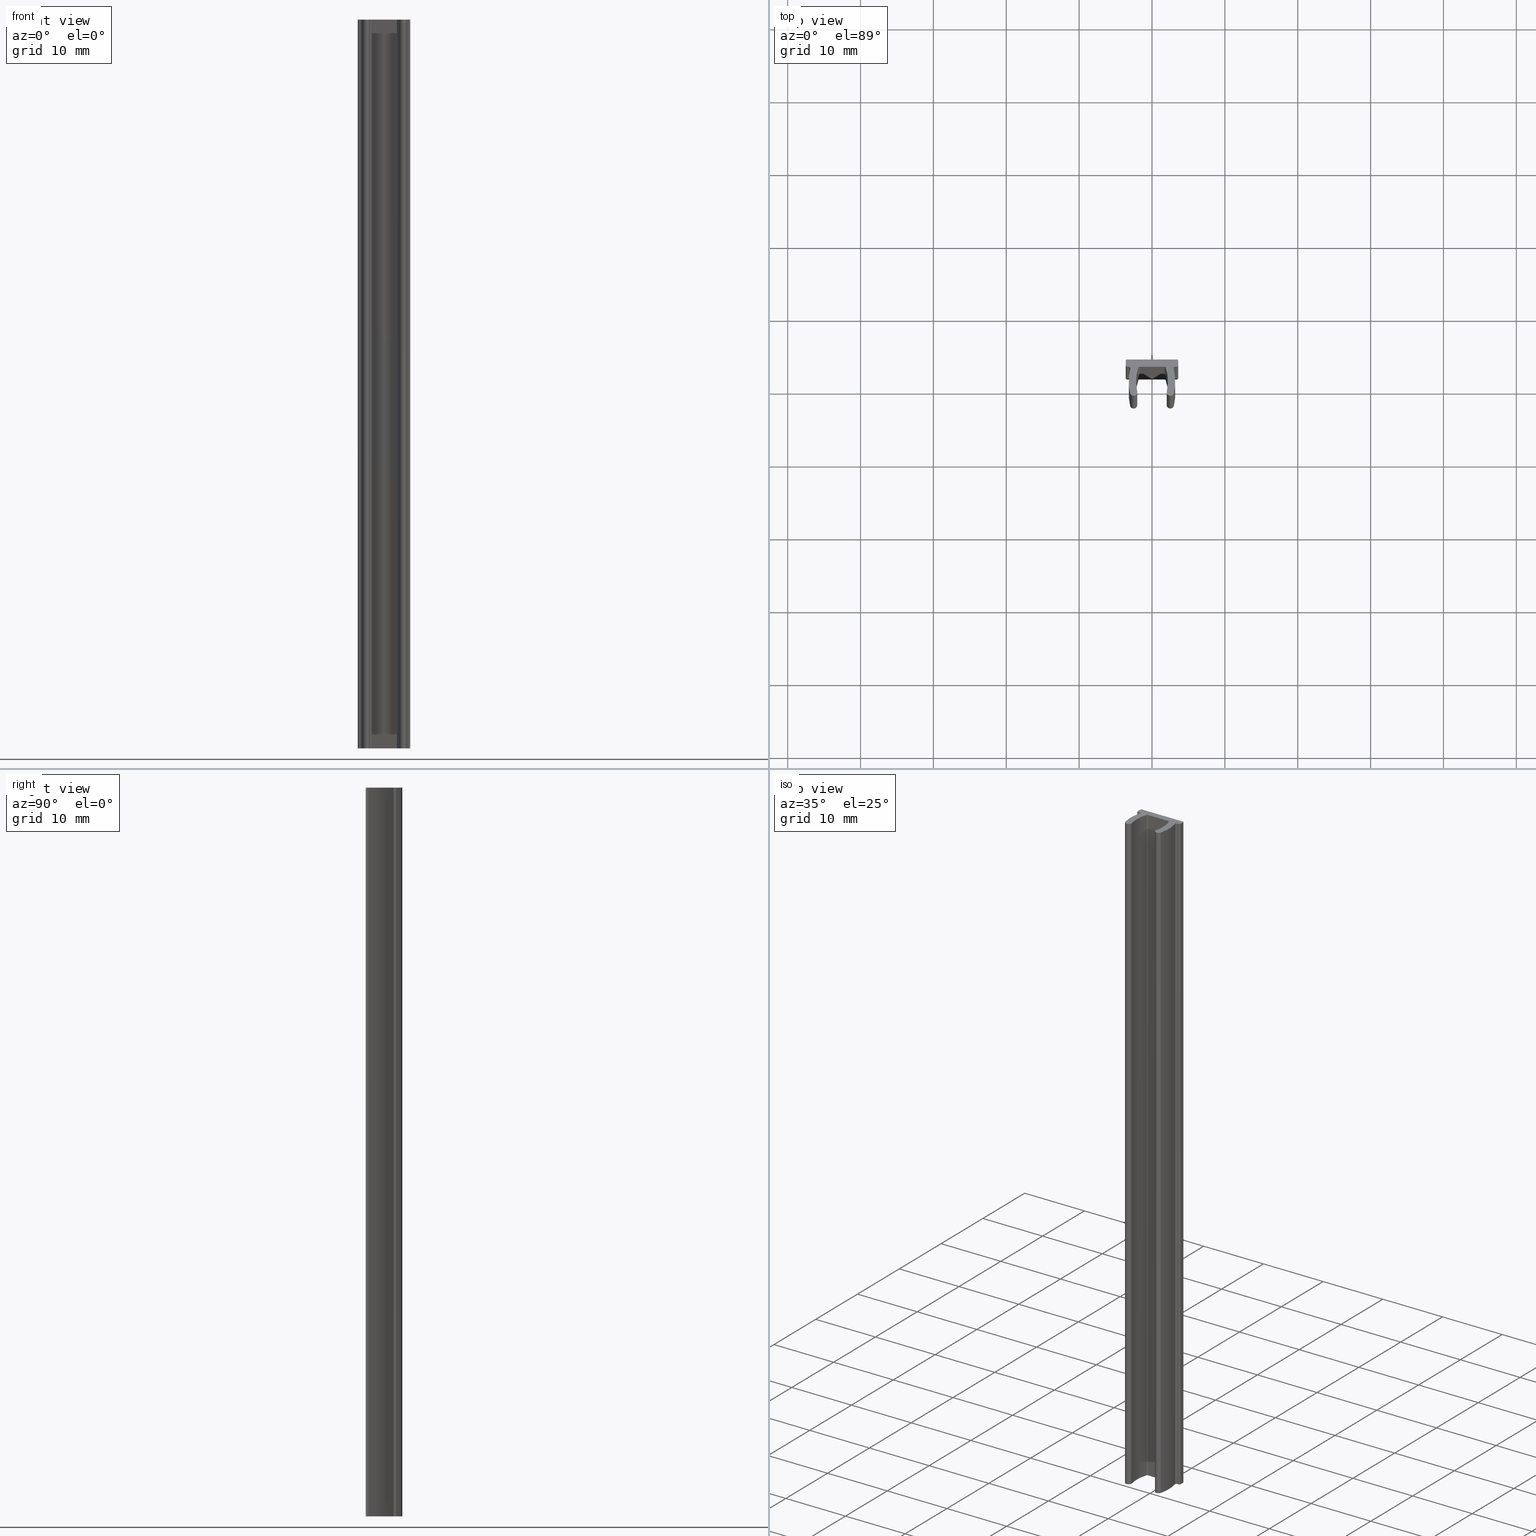
[diagram: canonical four-view strip — front | top / right | iso, engineering-drawing reading convention]
A machine part, canonical four-view strip (front | top / right | iso — engineering-drawing reading convention). The complete STEP part file that produces these views, byte-faithful:
ISO-10303-21;
HEADER;
/* Generated by software containing ST-Developer
 * from STEP Tools, Inc. (www.steptools.com) 
 */

FILE_DESCRIPTION(
/* description */ ('PROFILO COPRICAVA CAVA 6 NERO SERIE 45'),
/* implementation_level */ '2;1');

FILE_NAME(
/* name */ 
'Q:\\Catalogo\\2_Accessori Dierre\\Per Download Web e catalogo cartace
o\\CATALOGO GUARNIZIONI E PROFILI\\PAGINA 89\\DGUCA0000007.stp',
/* time_stamp */ '2019-10-22T14:35:34+02:00',
/* author */ ('fzagni'),
/* organization */ (''),
/* preprocessor_version */ 'ST-DEVELOPER v17.2',
/* originating_system */ 'Autodesk Inventor 2019',
/* authorisation */ '');

FILE_SCHEMA (('AUTOMOTIVE_DESIGN { 1 0 10303 214 3 1 1 }'));
ENDSEC;

DATA;
#10=MECHANICAL_DESIGN_GEOMETRIC_PRESENTATION_REPRESENTATION('',(#13),#745);
#11=SHAPE_REPRESENTATION_RELATIONSHIP('SRR','None',#752,#12);
#12=ADVANCED_BREP_SHAPE_REPRESENTATION('',(#14),#744);
#13=STYLED_ITEM('',(#761),#14);
#14=MANIFOLD_SOLID_BREP('Solido1',#415);
#15=PLANE('',#444);
#16=PLANE('',#454);
#17=PLANE('',#458);
#18=PLANE('',#459);
#19=PLANE('',#469);
#20=PLANE('',#474);
#21=PLANE('',#483);
#22=PLANE('',#484);
#23=FACE_OUTER_BOUND('',#45,.T.);
#24=FACE_OUTER_BOUND('',#46,.T.);
#25=FACE_OUTER_BOUND('',#47,.T.);
#26=FACE_OUTER_BOUND('',#48,.T.);
#27=FACE_OUTER_BOUND('',#49,.T.);
#28=FACE_OUTER_BOUND('',#50,.T.);
#29=FACE_OUTER_BOUND('',#51,.T.);
#30=FACE_OUTER_BOUND('',#52,.T.);
#31=FACE_OUTER_BOUND('',#53,.T.);
#32=FACE_OUTER_BOUND('',#54,.T.);
#33=FACE_OUTER_BOUND('',#55,.T.);
#34=FACE_OUTER_BOUND('',#56,.T.);
#35=FACE_OUTER_BOUND('',#57,.T.);
#36=FACE_OUTER_BOUND('',#58,.T.);
#37=FACE_OUTER_BOUND('',#59,.T.);
#38=FACE_OUTER_BOUND('',#60,.T.);
#39=FACE_OUTER_BOUND('',#61,.T.);
#40=FACE_OUTER_BOUND('',#62,.T.);
#41=FACE_OUTER_BOUND('',#63,.T.);
#42=FACE_OUTER_BOUND('',#64,.T.);
#43=FACE_OUTER_BOUND('',#65,.T.);
#44=FACE_OUTER_BOUND('',#66,.T.);
#45=EDGE_LOOP('',(#259,#260,#261,#262));
#46=EDGE_LOOP('',(#263,#264,#265,#266));
#47=EDGE_LOOP('',(#267,#268,#269,#270));
#48=EDGE_LOOP('',(#271,#272,#273,#274));
#49=EDGE_LOOP('',(#275,#276,#277,#278));
#50=EDGE_LOOP('',(#279,#280,#281,#282));
#51=EDGE_LOOP('',(#283,#284,#285,#286));
#52=EDGE_LOOP('',(#287,#288,#289,#290));
#53=EDGE_LOOP('',(#291,#292,#293,#294));
#54=EDGE_LOOP('',(#295,#296,#297,#298));
#55=EDGE_LOOP('',(#299,#300,#301,#302,#303,#304,#305,#306,#307,#308,#309,
#310,#311,#312,#313,#314,#315,#316,#317,#318));
#56=EDGE_LOOP('',(#319,#320,#321,#322));
#57=EDGE_LOOP('',(#323,#324,#325,#326));
#58=EDGE_LOOP('',(#327,#328,#329,#330));
#59=EDGE_LOOP('',(#331,#332,#333,#334));
#60=EDGE_LOOP('',(#335,#336,#337,#338));
#61=EDGE_LOOP('',(#339,#340,#341,#342));
#62=EDGE_LOOP('',(#343,#344,#345,#346));
#63=EDGE_LOOP('',(#347,#348,#349,#350));
#64=EDGE_LOOP('',(#351,#352,#353,#354));
#65=EDGE_LOOP('',(#355,#356,#357,#358));
#66=EDGE_LOOP('',(#359,#360,#361,#362,#363,#364,#365,#366,#367,#368,#369,
#370,#371,#372,#373,#374,#375,#376,#377,#378));
#67=LINE('',#625,#99);
#68=LINE('',#628,#100);
#69=LINE('',#633,#101);
#70=LINE('',#640,#102);
#71=LINE('',#643,#103);
#72=LINE('',#645,#104);
#73=LINE('',#646,#105);
#74=LINE('',#652,#106);
#75=LINE('',#655,#107);
#76=LINE('',#660,#108);
#77=LINE('',#667,#109);
#78=LINE('',#670,#110);
#79=LINE('',#673,#111);
#80=LINE('',#675,#112);
#81=LINE('',#676,#113);
#82=LINE('',#682,#114);
#83=LINE('',#685,#115);
#84=LINE('',#688,#116);
#85=LINE('',#690,#117);
#86=LINE('',#691,#118);
#87=LINE('',#693,#119);
#88=LINE('',#703,#120);
#89=LINE('',#707,#121);
#90=LINE('',#711,#122);
#91=LINE('',#715,#123);
#92=LINE('',#716,#124);
#93=LINE('',#720,#125);
#94=LINE('',#723,#126);
#95=LINE('',#726,#127);
#96=LINE('',#729,#128);
#97=LINE('',#735,#129);
#98=LINE('',#740,#130);
#99=VECTOR('',#491,10.);
#100=VECTOR('',#494,10.);
#101=VECTOR('',#499,10.);
#102=VECTOR('',#506,10.);
#103=VECTOR('',#509,10.);
#104=VECTOR('',#512,10.);
#105=VECTOR('',#513,10.);
#106=VECTOR('',#518,10.);
#107=VECTOR('',#521,10.);
#108=VECTOR('',#526,10.);
#109=VECTOR('',#533,10.);
#110=VECTOR('',#536,10.);
#111=VECTOR('',#539,10.);
#112=VECTOR('',#540,10.);
#113=VECTOR('',#541,10.);
#114=VECTOR('',#546,10.);
#115=VECTOR('',#549,10.);
#116=VECTOR('',#552,10.);
#117=VECTOR('',#553,10.);
#118=VECTOR('',#554,10.);
#119=VECTOR('',#557,10.);
#120=VECTOR('',#568,10.);
#121=VECTOR('',#571,10.);
#122=VECTOR('',#576,10.);
#123=VECTOR('',#581,10.);
#124=VECTOR('',#582,10.);
#125=VECTOR('',#587,10.);
#126=VECTOR('',#590,10.);
#127=VECTOR('',#595,10.);
#128=VECTOR('',#598,10.);
#129=VECTOR('',#607,10.);
#130=VECTOR('',#616,10.);
#131=CIRCLE('',#436,0.2);
#132=CIRCLE('',#437,0.2);
#133=CIRCLE('',#439,5.8);
#134=CIRCLE('',#440,5.8);
#135=CIRCLE('',#442,0.2);
#136=CIRCLE('',#443,0.2);
#137=CIRCLE('',#446,0.2);
#138=CIRCLE('',#447,0.2);
#139=CIRCLE('',#449,6.8);
#140=CIRCLE('',#450,6.8);
#141=CIRCLE('',#452,0.2);
#142=CIRCLE('',#453,0.2);
#143=CIRCLE('',#456,0.2);
#144=CIRCLE('',#457,0.2);
#145=CIRCLE('',#460,0.500000000000001);
#146=CIRCLE('',#461,5.8);
#147=CIRCLE('',#462,0.500000000000001);
#148=CIRCLE('',#463,6.8);
#149=CIRCLE('',#464,0.2);
#150=CIRCLE('',#465,0.2);
#151=CIRCLE('',#466,0.2);
#152=CIRCLE('',#468,0.2);
#153=CIRCLE('',#471,0.2);
#154=CIRCLE('',#473,0.2);
#155=CIRCLE('',#476,6.8);
#156=CIRCLE('',#478,0.500000000000001);
#157=CIRCLE('',#480,5.8);
#158=CIRCLE('',#482,0.500000000000001);
#159=VERTEX_POINT('',#621);
#160=VERTEX_POINT('',#622);
#161=VERTEX_POINT('',#624);
#162=VERTEX_POINT('',#626);
#163=VERTEX_POINT('',#630);
#164=VERTEX_POINT('',#632);
#165=VERTEX_POINT('',#636);
#166=VERTEX_POINT('',#637);
#167=VERTEX_POINT('',#639);
#168=VERTEX_POINT('',#641);
#169=VERTEX_POINT('',#648);
#170=VERTEX_POINT('',#649);
#171=VERTEX_POINT('',#651);
#172=VERTEX_POINT('',#653);
#173=VERTEX_POINT('',#657);
#174=VERTEX_POINT('',#659);
#175=VERTEX_POINT('',#663);
#176=VERTEX_POINT('',#664);
#177=VERTEX_POINT('',#666);
#178=VERTEX_POINT('',#668);
#179=VERTEX_POINT('',#672);
#180=VERTEX_POINT('',#674);
#181=VERTEX_POINT('',#678);
#182=VERTEX_POINT('',#679);
#183=VERTEX_POINT('',#681);
#184=VERTEX_POINT('',#683);
#185=VERTEX_POINT('',#687);
#186=VERTEX_POINT('',#689);
#187=VERTEX_POINT('',#694);
#188=VERTEX_POINT('',#697);
#189=VERTEX_POINT('',#700);
#190=VERTEX_POINT('',#702);
#191=VERTEX_POINT('',#704);
#192=VERTEX_POINT('',#706);
#193=VERTEX_POINT('',#710);
#194=VERTEX_POINT('',#714);
#195=VERTEX_POINT('',#718);
#196=VERTEX_POINT('',#722);
#197=VERTEX_POINT('',#728);
#198=VERTEX_POINT('',#734);
#199=EDGE_CURVE('',#159,#160,#131,.T.);
#200=EDGE_CURVE('',#160,#161,#67,.T.);
#201=EDGE_CURVE('',#161,#162,#132,.T.);
#202=EDGE_CURVE('',#162,#159,#68,.T.);
#203=EDGE_CURVE('',#163,#160,#133,.T.);
#204=EDGE_CURVE('',#163,#164,#69,.T.);
#205=EDGE_CURVE('',#161,#164,#134,.T.);
#206=EDGE_CURVE('',#165,#166,#135,.T.);
#207=EDGE_CURVE('',#166,#167,#70,.T.);
#208=EDGE_CURVE('',#167,#168,#136,.T.);
#209=EDGE_CURVE('',#168,#165,#71,.T.);
#210=EDGE_CURVE('',#167,#162,#72,.T.);
#211=EDGE_CURVE('',#159,#166,#73,.T.);
#212=EDGE_CURVE('',#169,#170,#137,.T.);
#213=EDGE_CURVE('',#170,#171,#74,.T.);
#214=EDGE_CURVE('',#171,#172,#138,.T.);
#215=EDGE_CURVE('',#172,#169,#75,.T.);
#216=EDGE_CURVE('',#173,#170,#139,.T.);
#217=EDGE_CURVE('',#173,#174,#76,.T.);
#218=EDGE_CURVE('',#171,#174,#140,.T.);
#219=EDGE_CURVE('',#175,#176,#141,.T.);
#220=EDGE_CURVE('',#176,#177,#77,.T.);
#221=EDGE_CURVE('',#177,#178,#142,.T.);
#222=EDGE_CURVE('',#178,#175,#78,.T.);
#223=EDGE_CURVE('',#179,#176,#79,.T.);
#224=EDGE_CURVE('',#180,#179,#80,.T.);
#225=EDGE_CURVE('',#177,#180,#81,.T.);
#226=EDGE_CURVE('',#181,#182,#143,.T.);
#227=EDGE_CURVE('',#182,#183,#82,.T.);
#228=EDGE_CURVE('',#183,#184,#144,.T.);
#229=EDGE_CURVE('',#184,#181,#83,.T.);
#230=EDGE_CURVE('',#185,#182,#84,.T.);
#231=EDGE_CURVE('',#186,#185,#85,.T.);
#232=EDGE_CURVE('',#183,#186,#86,.T.);
#233=EDGE_CURVE('',#181,#172,#87,.T.);
#234=EDGE_CURVE('',#174,#187,#145,.T.);
#235=EDGE_CURVE('',#187,#168,#146,.T.);
#236=EDGE_CURVE('',#164,#188,#147,.T.);
#237=EDGE_CURVE('',#188,#178,#148,.T.);
#238=EDGE_CURVE('',#189,#180,#149,.T.);
#239=EDGE_CURVE('',#189,#190,#88,.T.);
#240=EDGE_CURVE('',#191,#190,#150,.T.);
#241=EDGE_CURVE('',#191,#192,#89,.T.);
#242=EDGE_CURVE('',#185,#192,#151,.T.);
#243=EDGE_CURVE('',#192,#193,#90,.T.);
#244=EDGE_CURVE('',#193,#186,#152,.T.);
#245=EDGE_CURVE('',#194,#191,#91,.T.);
#246=EDGE_CURVE('',#193,#194,#92,.T.);
#247=EDGE_CURVE('',#179,#195,#153,.T.);
#248=EDGE_CURVE('',#195,#189,#93,.T.);
#249=EDGE_CURVE('',#190,#196,#94,.T.);
#250=EDGE_CURVE('',#196,#194,#154,.T.);
#251=EDGE_CURVE('',#196,#195,#95,.T.);
#252=EDGE_CURVE('',#197,#188,#96,.T.);
#253=EDGE_CURVE('',#175,#197,#155,.T.);
#254=EDGE_CURVE('',#197,#163,#156,.T.);
#255=EDGE_CURVE('',#198,#187,#97,.T.);
#256=EDGE_CURVE('',#165,#198,#157,.T.);
#257=EDGE_CURVE('',#198,#173,#158,.T.);
#258=EDGE_CURVE('',#169,#184,#98,.T.);
#259=ORIENTED_EDGE('',*,*,#199,.T.);
#260=ORIENTED_EDGE('',*,*,#200,.T.);
#261=ORIENTED_EDGE('',*,*,#201,.T.);
#262=ORIENTED_EDGE('',*,*,#202,.T.);
#263=ORIENTED_EDGE('',*,*,#200,.F.);
#264=ORIENTED_EDGE('',*,*,#203,.F.);
#265=ORIENTED_EDGE('',*,*,#204,.T.);
#266=ORIENTED_EDGE('',*,*,#205,.F.);
#267=ORIENTED_EDGE('',*,*,#206,.T.);
#268=ORIENTED_EDGE('',*,*,#207,.T.);
#269=ORIENTED_EDGE('',*,*,#208,.T.);
#270=ORIENTED_EDGE('',*,*,#209,.T.);
#271=ORIENTED_EDGE('',*,*,#202,.F.);
#272=ORIENTED_EDGE('',*,*,#210,.F.);
#273=ORIENTED_EDGE('',*,*,#207,.F.);
#274=ORIENTED_EDGE('',*,*,#211,.F.);
#275=ORIENTED_EDGE('',*,*,#212,.T.);
#276=ORIENTED_EDGE('',*,*,#213,.T.);
#277=ORIENTED_EDGE('',*,*,#214,.T.);
#278=ORIENTED_EDGE('',*,*,#215,.T.);
#279=ORIENTED_EDGE('',*,*,#213,.F.);
#280=ORIENTED_EDGE('',*,*,#216,.F.);
#281=ORIENTED_EDGE('',*,*,#217,.T.);
#282=ORIENTED_EDGE('',*,*,#218,.F.);
#283=ORIENTED_EDGE('',*,*,#219,.T.);
#284=ORIENTED_EDGE('',*,*,#220,.T.);
#285=ORIENTED_EDGE('',*,*,#221,.T.);
#286=ORIENTED_EDGE('',*,*,#222,.T.);
#287=ORIENTED_EDGE('',*,*,#220,.F.);
#288=ORIENTED_EDGE('',*,*,#223,.F.);
#289=ORIENTED_EDGE('',*,*,#224,.F.);
#290=ORIENTED_EDGE('',*,*,#225,.F.);
#291=ORIENTED_EDGE('',*,*,#226,.T.);
#292=ORIENTED_EDGE('',*,*,#227,.T.);
#293=ORIENTED_EDGE('',*,*,#228,.T.);
#294=ORIENTED_EDGE('',*,*,#229,.T.);
#295=ORIENTED_EDGE('',*,*,#227,.F.);
#296=ORIENTED_EDGE('',*,*,#230,.F.);
#297=ORIENTED_EDGE('',*,*,#231,.F.);
#298=ORIENTED_EDGE('',*,*,#232,.F.);
#299=ORIENTED_EDGE('',*,*,#226,.F.);
#300=ORIENTED_EDGE('',*,*,#233,.T.);
#301=ORIENTED_EDGE('',*,*,#214,.F.);
#302=ORIENTED_EDGE('',*,*,#218,.T.);
#303=ORIENTED_EDGE('',*,*,#234,.T.);
#304=ORIENTED_EDGE('',*,*,#235,.T.);
#305=ORIENTED_EDGE('',*,*,#208,.F.);
#306=ORIENTED_EDGE('',*,*,#210,.T.);
#307=ORIENTED_EDGE('',*,*,#201,.F.);
#308=ORIENTED_EDGE('',*,*,#205,.T.);
#309=ORIENTED_EDGE('',*,*,#236,.T.);
#310=ORIENTED_EDGE('',*,*,#237,.T.);
#311=ORIENTED_EDGE('',*,*,#221,.F.);
#312=ORIENTED_EDGE('',*,*,#225,.T.);
#313=ORIENTED_EDGE('',*,*,#238,.F.);
#314=ORIENTED_EDGE('',*,*,#239,.T.);
#315=ORIENTED_EDGE('',*,*,#240,.F.);
#316=ORIENTED_EDGE('',*,*,#241,.T.);
#317=ORIENTED_EDGE('',*,*,#242,.F.);
#318=ORIENTED_EDGE('',*,*,#230,.T.);
#319=ORIENTED_EDGE('',*,*,#242,.T.);
#320=ORIENTED_EDGE('',*,*,#243,.T.);
#321=ORIENTED_EDGE('',*,*,#244,.T.);
#322=ORIENTED_EDGE('',*,*,#231,.T.);
#323=ORIENTED_EDGE('',*,*,#243,.F.);
#324=ORIENTED_EDGE('',*,*,#241,.F.);
#325=ORIENTED_EDGE('',*,*,#245,.F.);
#326=ORIENTED_EDGE('',*,*,#246,.F.);
#327=ORIENTED_EDGE('',*,*,#238,.T.);
#328=ORIENTED_EDGE('',*,*,#224,.T.);
#329=ORIENTED_EDGE('',*,*,#247,.T.);
#330=ORIENTED_EDGE('',*,*,#248,.T.);
#331=ORIENTED_EDGE('',*,*,#240,.T.);
#332=ORIENTED_EDGE('',*,*,#249,.T.);
#333=ORIENTED_EDGE('',*,*,#250,.T.);
#334=ORIENTED_EDGE('',*,*,#245,.T.);
#335=ORIENTED_EDGE('',*,*,#248,.F.);
#336=ORIENTED_EDGE('',*,*,#251,.F.);
#337=ORIENTED_EDGE('',*,*,#249,.F.);
#338=ORIENTED_EDGE('',*,*,#239,.F.);
#339=ORIENTED_EDGE('',*,*,#222,.F.);
#340=ORIENTED_EDGE('',*,*,#237,.F.);
#341=ORIENTED_EDGE('',*,*,#252,.F.);
#342=ORIENTED_EDGE('',*,*,#253,.F.);
#343=ORIENTED_EDGE('',*,*,#254,.F.);
#344=ORIENTED_EDGE('',*,*,#252,.T.);
#345=ORIENTED_EDGE('',*,*,#236,.F.);
#346=ORIENTED_EDGE('',*,*,#204,.F.);
#347=ORIENTED_EDGE('',*,*,#209,.F.);
#348=ORIENTED_EDGE('',*,*,#235,.F.);
#349=ORIENTED_EDGE('',*,*,#255,.F.);
#350=ORIENTED_EDGE('',*,*,#256,.F.);
#351=ORIENTED_EDGE('',*,*,#257,.F.);
#352=ORIENTED_EDGE('',*,*,#255,.T.);
#353=ORIENTED_EDGE('',*,*,#234,.F.);
#354=ORIENTED_EDGE('',*,*,#217,.F.);
#355=ORIENTED_EDGE('',*,*,#215,.F.);
#356=ORIENTED_EDGE('',*,*,#233,.F.);
#357=ORIENTED_EDGE('',*,*,#229,.F.);
#358=ORIENTED_EDGE('',*,*,#258,.F.);
#359=ORIENTED_EDGE('',*,*,#228,.F.);
#360=ORIENTED_EDGE('',*,*,#232,.T.);
#361=ORIENTED_EDGE('',*,*,#244,.F.);
#362=ORIENTED_EDGE('',*,*,#246,.T.);
#363=ORIENTED_EDGE('',*,*,#250,.F.);
#364=ORIENTED_EDGE('',*,*,#251,.T.);
#365=ORIENTED_EDGE('',*,*,#247,.F.);
#366=ORIENTED_EDGE('',*,*,#223,.T.);
#367=ORIENTED_EDGE('',*,*,#219,.F.);
#368=ORIENTED_EDGE('',*,*,#253,.T.);
#369=ORIENTED_EDGE('',*,*,#254,.T.);
#370=ORIENTED_EDGE('',*,*,#203,.T.);
#371=ORIENTED_EDGE('',*,*,#199,.F.);
#372=ORIENTED_EDGE('',*,*,#211,.T.);
#373=ORIENTED_EDGE('',*,*,#206,.F.);
#374=ORIENTED_EDGE('',*,*,#256,.T.);
#375=ORIENTED_EDGE('',*,*,#257,.T.);
#376=ORIENTED_EDGE('',*,*,#216,.T.);
#377=ORIENTED_EDGE('',*,*,#212,.F.);
#378=ORIENTED_EDGE('',*,*,#258,.T.);
#379=CYLINDRICAL_SURFACE('',#435,0.2);
#380=CYLINDRICAL_SURFACE('',#438,5.8);
#381=CYLINDRICAL_SURFACE('',#441,0.2);
#382=CYLINDRICAL_SURFACE('',#445,0.2);
#383=CYLINDRICAL_SURFACE('',#448,6.8);
#384=CYLINDRICAL_SURFACE('',#451,0.2);
#385=CYLINDRICAL_SURFACE('',#455,0.2);
#386=CYLINDRICAL_SURFACE('',#467,0.2);
#387=CYLINDRICAL_SURFACE('',#470,0.2);
#388=CYLINDRICAL_SURFACE('',#472,0.2);
#389=CYLINDRICAL_SURFACE('',#475,6.8);
#390=CYLINDRICAL_SURFACE('',#477,0.500000000000001);
#391=CYLINDRICAL_SURFACE('',#479,5.8);
#392=CYLINDRICAL_SURFACE('',#481,0.500000000000001);
#393=ADVANCED_FACE('',(#23),#379,.F.);
#394=ADVANCED_FACE('',(#24),#380,.F.);
#395=ADVANCED_FACE('',(#25),#381,.F.);
#396=ADVANCED_FACE('',(#26),#15,.T.);
#397=ADVANCED_FACE('',(#27),#382,.F.);
#398=ADVANCED_FACE('',(#28),#383,.T.);
#399=ADVANCED_FACE('',(#29),#384,.F.);
#400=ADVANCED_FACE('',(#30),#16,.T.);
#401=ADVANCED_FACE('',(#31),#385,.T.);
#402=ADVANCED_FACE('',(#32),#17,.T.);
#403=ADVANCED_FACE('',(#33),#18,.T.);
#404=ADVANCED_FACE('',(#34),#386,.T.);
#405=ADVANCED_FACE('',(#35),#19,.T.);
#406=ADVANCED_FACE('',(#36),#387,.T.);
#407=ADVANCED_FACE('',(#37),#388,.T.);
#408=ADVANCED_FACE('',(#38),#20,.T.);
#409=ADVANCED_FACE('',(#39),#389,.T.);
#410=ADVANCED_FACE('',(#40),#390,.T.);
#411=ADVANCED_FACE('',(#41),#391,.F.);
#412=ADVANCED_FACE('',(#42),#392,.T.);
#413=ADVANCED_FACE('',(#43),#21,.T.);
#414=ADVANCED_FACE('',(#44),#22,.F.);
#415=CLOSED_SHELL('',(#393,#394,#395,#396,#397,#398,#399,#400,#401,#402,
#403,#404,#405,#406,#407,#408,#409,#410,#411,#412,#413,#414));
#416=DERIVED_UNIT_ELEMENT(#418,1.);
#417=DERIVED_UNIT_ELEMENT(#747,3.);
#418=(
MASS_UNIT()
NAMED_UNIT(*)
SI_UNIT($,.GRAM.)
);
#419=DERIVED_UNIT((#416,#417));
#420=MEASURE_REPRESENTATION_ITEM('density measure',
POSITIVE_RATIO_MEASURE(0.5),#419);
#421=PROPERTY_DEFINITION_REPRESENTATION(#426,#423);
#422=PROPERTY_DEFINITION_REPRESENTATION(#427,#424);
#423=REPRESENTATION('material name',(#425),#744);
#424=REPRESENTATION('density',(#420),#744);
#425=DESCRIPTIVE_REPRESENTATION_ITEM('PVC Nero','PVC Nero');
#426=PROPERTY_DEFINITION('material property','material name',#754);
#427=PROPERTY_DEFINITION('material property','density of part',#754);
#428=DATE_TIME_ROLE('creation_date');
#429=APPLIED_DATE_AND_TIME_ASSIGNMENT(#430,#428,(#754));
#430=DATE_AND_TIME(#431,#432);
#431=CALENDAR_DATE(2019,22,10);
#432=LOCAL_TIME(12,16,3.,#433);
#433=COORDINATED_UNIVERSAL_TIME_OFFSET(0,0,.BEHIND.);
#434=AXIS2_PLACEMENT_3D('placement',#619,#485,#486);
#435=AXIS2_PLACEMENT_3D('',#620,#487,#488);
#436=AXIS2_PLACEMENT_3D('',#623,#489,#490);
#437=AXIS2_PLACEMENT_3D('',#627,#492,#493);
#438=AXIS2_PLACEMENT_3D('',#629,#495,#496);
#439=AXIS2_PLACEMENT_3D('',#631,#497,#498);
#440=AXIS2_PLACEMENT_3D('',#634,#500,#501);
#441=AXIS2_PLACEMENT_3D('',#635,#502,#503);
#442=AXIS2_PLACEMENT_3D('',#638,#504,#505);
#443=AXIS2_PLACEMENT_3D('',#642,#507,#508);
#444=AXIS2_PLACEMENT_3D('',#644,#510,#511);
#445=AXIS2_PLACEMENT_3D('',#647,#514,#515);
#446=AXIS2_PLACEMENT_3D('',#650,#516,#517);
#447=AXIS2_PLACEMENT_3D('',#654,#519,#520);
#448=AXIS2_PLACEMENT_3D('',#656,#522,#523);
#449=AXIS2_PLACEMENT_3D('',#658,#524,#525);
#450=AXIS2_PLACEMENT_3D('',#661,#527,#528);
#451=AXIS2_PLACEMENT_3D('',#662,#529,#530);
#452=AXIS2_PLACEMENT_3D('',#665,#531,#532);
#453=AXIS2_PLACEMENT_3D('',#669,#534,#535);
#454=AXIS2_PLACEMENT_3D('',#671,#537,#538);
#455=AXIS2_PLACEMENT_3D('',#677,#542,#543);
#456=AXIS2_PLACEMENT_3D('',#680,#544,#545);
#457=AXIS2_PLACEMENT_3D('',#684,#547,#548);
#458=AXIS2_PLACEMENT_3D('',#686,#550,#551);
#459=AXIS2_PLACEMENT_3D('',#692,#555,#556);
#460=AXIS2_PLACEMENT_3D('',#695,#558,#559);
#461=AXIS2_PLACEMENT_3D('',#696,#560,#561);
#462=AXIS2_PLACEMENT_3D('',#698,#562,#563);
#463=AXIS2_PLACEMENT_3D('',#699,#564,#565);
#464=AXIS2_PLACEMENT_3D('',#701,#566,#567);
#465=AXIS2_PLACEMENT_3D('',#705,#569,#570);
#466=AXIS2_PLACEMENT_3D('',#708,#572,#573);
#467=AXIS2_PLACEMENT_3D('',#709,#574,#575);
#468=AXIS2_PLACEMENT_3D('',#712,#577,#578);
#469=AXIS2_PLACEMENT_3D('',#713,#579,#580);
#470=AXIS2_PLACEMENT_3D('',#717,#583,#584);
#471=AXIS2_PLACEMENT_3D('',#719,#585,#586);
#472=AXIS2_PLACEMENT_3D('',#721,#588,#589);
#473=AXIS2_PLACEMENT_3D('',#724,#591,#592);
#474=AXIS2_PLACEMENT_3D('',#725,#593,#594);
#475=AXIS2_PLACEMENT_3D('',#727,#596,#597);
#476=AXIS2_PLACEMENT_3D('',#730,#599,#600);
#477=AXIS2_PLACEMENT_3D('',#731,#601,#602);
#478=AXIS2_PLACEMENT_3D('',#732,#603,#604);
#479=AXIS2_PLACEMENT_3D('',#733,#605,#606);
#480=AXIS2_PLACEMENT_3D('',#736,#608,#609);
#481=AXIS2_PLACEMENT_3D('',#737,#610,#611);
#482=AXIS2_PLACEMENT_3D('',#738,#612,#613);
#483=AXIS2_PLACEMENT_3D('',#739,#614,#615);
#484=AXIS2_PLACEMENT_3D('',#741,#617,#618);
#485=DIRECTION('axis',(0.,0.,1.));
#486=DIRECTION('refdir',(1.,0.,0.));
#487=DIRECTION('center_axis',(0.,0.,1.));
#488=DIRECTION('ref_axis',(0.582482372510715,0.812843334052933,0.));
#489=DIRECTION('center_axis',(0.,0.,-1.));
#490=DIRECTION('ref_axis',(0.582482372510715,0.812843334052933,0.));
#491=DIRECTION('',(0.,0.,1.));
#492=DIRECTION('center_axis',(0.,0.,1.));
#493=DIRECTION('ref_axis',(0.582482372510715,0.812843334052933,0.));
#494=DIRECTION('',(0.,0.,-1.));
#495=DIRECTION('center_axis',(0.,0.,1.));
#496=DIRECTION('ref_axis',(0.971241812112912,-0.238095238095235,0.));
#497=DIRECTION('center_axis',(0.,0.,1.));
#498=DIRECTION('ref_axis',(0.971241812112912,-0.238095238095235,0.));
#499=DIRECTION('',(0.,0.,1.));
#500=DIRECTION('center_axis',(0.,0.,-1.));
#501=DIRECTION('ref_axis',(0.971241812112912,-0.238095238095235,0.));
#502=DIRECTION('center_axis',(0.,0.,1.));
#503=DIRECTION('ref_axis',(-0.582482372510718,0.812843334052931,0.));
#504=DIRECTION('center_axis',(0.,0.,-1.));
#505=DIRECTION('ref_axis',(-0.582482372510718,0.812843334052931,0.));
#506=DIRECTION('',(0.,0.,1.));
#507=DIRECTION('center_axis',(0.,0.,1.));
#508=DIRECTION('ref_axis',(-0.582482372510718,0.812843334052931,0.));
#509=DIRECTION('',(0.,0.,-1.));
#510=DIRECTION('center_axis',(0.,-1.,0.));
#511=DIRECTION('ref_axis',(1.,0.,0.));
#512=DIRECTION('',(1.,0.,0.));
#513=DIRECTION('',(-1.,0.,0.));
#514=DIRECTION('center_axis',(0.,0.,1.));
#515=DIRECTION('ref_axis',(0.792824967172089,0.609449400220048,0.));
#516=DIRECTION('center_axis',(0.,0.,-1.));
#517=DIRECTION('ref_axis',(0.792824967172089,0.609449400220048,0.));
#518=DIRECTION('',(0.,0.,1.));
#519=DIRECTION('center_axis',(0.,0.,1.));
#520=DIRECTION('ref_axis',(0.792824967172089,0.609449400220048,0.));
#521=DIRECTION('',(0.,0.,-1.));
#522=DIRECTION('center_axis',(0.,0.,1.));
#523=DIRECTION('ref_axis',(0.955769224074819,-0.294117647058824,0.));
#524=DIRECTION('center_axis',(0.,0.,-1.));
#525=DIRECTION('ref_axis',(0.955769224074819,-0.294117647058824,0.));
#526=DIRECTION('',(0.,0.,1.));
#527=DIRECTION('center_axis',(0.,0.,1.));
#528=DIRECTION('ref_axis',(0.955769224074819,-0.294117647058824,0.));
#529=DIRECTION('center_axis',(0.,0.,1.));
#530=DIRECTION('ref_axis',(-0.792824967172092,0.609449400220044,0.));
#531=DIRECTION('center_axis',(0.,0.,-1.));
#532=DIRECTION('ref_axis',(-0.792824967172092,0.609449400220044,0.));
#533=DIRECTION('',(0.,0.,1.));
#534=DIRECTION('center_axis',(0.,0.,1.));
#535=DIRECTION('ref_axis',(-0.792824967172092,0.609449400220044,0.));
#536=DIRECTION('',(0.,0.,-1.));
#537=DIRECTION('center_axis',(0.,-1.,0.));
#538=DIRECTION('ref_axis',(1.,0.,0.));
#539=DIRECTION('',(-1.,0.,0.));
#540=DIRECTION('',(0.,0.,-1.));
#541=DIRECTION('',(1.,0.,0.));
#542=DIRECTION('center_axis',(0.,0.,1.));
#543=DIRECTION('ref_axis',(-0.707106781186548,-0.707106781186548,0.));
#544=DIRECTION('center_axis',(0.,0.,-1.));
#545=DIRECTION('ref_axis',(-0.707106781186548,-0.707106781186548,0.));
#546=DIRECTION('',(0.,0.,-1.));
#547=DIRECTION('center_axis',(0.,0.,1.));
#548=DIRECTION('ref_axis',(-0.707106781186548,-0.707106781186548,0.));
#549=DIRECTION('',(0.,0.,1.));
#550=DIRECTION('center_axis',(-1.,0.,0.));
#551=DIRECTION('ref_axis',(0.,-1.,0.));
#552=DIRECTION('',(0.,-1.,0.));
#553=DIRECTION('',(0.,0.,1.));
#554=DIRECTION('',(0.,1.,0.));
#555=DIRECTION('center_axis',(0.,0.,1.));
#556=DIRECTION('ref_axis',(1.,0.,0.));
#557=DIRECTION('',(1.,0.,0.));
#558=DIRECTION('center_axis',(0.,0.,1.));
#559=DIRECTION('ref_axis',(0.971241812112911,0.238095238095238,0.));
#560=DIRECTION('center_axis',(0.,0.,-1.));
#561=DIRECTION('ref_axis',(-0.938666040608014,0.344827586206897,0.));
#562=DIRECTION('center_axis',(0.,0.,1.));
#563=DIRECTION('ref_axis',(0.971241812112913,-0.238095238095233,0.));
#564=DIRECTION('center_axis',(0.,0.,1.));
#565=DIRECTION('ref_axis',(-0.971241811677602,0.23809523987096,0.));
#566=DIRECTION('center_axis',(0.,0.,-1.));
#567=DIRECTION('ref_axis',(0.707106781186548,-0.707106781186548,0.));
#568=DIRECTION('',(0.,1.,0.));
#569=DIRECTION('center_axis',(0.,0.,-1.));
#570=DIRECTION('ref_axis',(0.707106781186548,0.707106781186548,0.));
#571=DIRECTION('',(-1.,0.,0.));
#572=DIRECTION('center_axis',(0.,0.,-1.));
#573=DIRECTION('ref_axis',(-0.707106781186548,0.707106781186548,0.));
#574=DIRECTION('center_axis',(0.,0.,1.));
#575=DIRECTION('ref_axis',(-0.707106781186548,0.707106781186548,0.));
#576=DIRECTION('',(0.,0.,-1.));
#577=DIRECTION('center_axis',(0.,0.,1.));
#578=DIRECTION('ref_axis',(-0.707106781186548,0.707106781186548,0.));
#579=DIRECTION('center_axis',(0.,1.,0.));
#580=DIRECTION('ref_axis',(-1.,0.,0.));
#581=DIRECTION('',(0.,0.,1.));
#582=DIRECTION('',(1.,0.,0.));
#583=DIRECTION('center_axis',(0.,0.,1.));
#584=DIRECTION('ref_axis',(0.707106781186548,-0.707106781186548,0.));
#585=DIRECTION('center_axis',(0.,0.,1.));
#586=DIRECTION('ref_axis',(0.707106781186548,-0.707106781186548,0.));
#587=DIRECTION('',(0.,0.,1.));
#588=DIRECTION('center_axis',(0.,0.,1.));
#589=DIRECTION('ref_axis',(0.707106781186548,0.707106781186548,0.));
#590=DIRECTION('',(0.,0.,-1.));
#591=DIRECTION('center_axis',(0.,0.,1.));
#592=DIRECTION('ref_axis',(0.707106781186548,0.707106781186548,0.));
#593=DIRECTION('center_axis',(1.,0.,0.));
#594=DIRECTION('ref_axis',(0.,1.,0.));
#595=DIRECTION('',(0.,-1.,0.));
#596=DIRECTION('center_axis',(0.,0.,1.));
#597=DIRECTION('ref_axis',(-0.971241811677602,0.23809523987096,0.));
#598=DIRECTION('',(0.,0.,1.));
#599=DIRECTION('center_axis',(0.,0.,-1.));
#600=DIRECTION('ref_axis',(-0.971241811677602,0.23809523987096,0.));
#601=DIRECTION('center_axis',(0.,0.,1.));
#602=DIRECTION('ref_axis',(0.971241812112913,-0.238095238095233,0.));
#603=DIRECTION('center_axis',(0.,0.,-1.));
#604=DIRECTION('ref_axis',(0.971241812112913,-0.238095238095233,0.));
#605=DIRECTION('center_axis',(0.,0.,1.));
#606=DIRECTION('ref_axis',(-0.938666040608014,0.344827586206897,0.));
#607=DIRECTION('',(0.,0.,1.));
#608=DIRECTION('center_axis',(0.,0.,1.));
#609=DIRECTION('ref_axis',(-0.938666040608014,0.344827586206897,0.));
#610=DIRECTION('center_axis',(0.,0.,1.));
#611=DIRECTION('ref_axis',(0.971241812112911,0.238095238095238,0.));
#612=DIRECTION('center_axis',(0.,0.,-1.));
#613=DIRECTION('ref_axis',(0.971241812112911,0.238095238095238,0.));
#614=DIRECTION('center_axis',(0.,-1.,0.));
#615=DIRECTION('ref_axis',(1.,0.,0.));
#616=DIRECTION('',(-1.,0.,0.));
#617=DIRECTION('center_axis',(0.,0.,1.));
#618=DIRECTION('ref_axis',(1.,0.,0.));
#619=CARTESIAN_POINT('',(0.,0.,0.));
#620=CARTESIAN_POINT('Origin',(1.70282943342514,1.8,0.));
#621=CARTESIAN_POINT('',(1.70282943342514,2.,0.));
#622=CARTESIAN_POINT('',(1.89221619890461,1.86428571428572,0.));
#623=CARTESIAN_POINT('Origin',(1.70282943342514,1.8,0.));
#624=CARTESIAN_POINT('',(1.89221619890461,1.86428571428572,100.));
#625=CARTESIAN_POINT('',(1.89221619890461,1.86428571428571,0.));
#626=CARTESIAN_POINT('',(1.70282943342514,2.,100.));
#627=CARTESIAN_POINT('Origin',(1.70282943342514,1.8,100.));
#628=CARTESIAN_POINT('',(1.70282943342514,2.,0.));
#629=CARTESIAN_POINT('Origin',(-3.59999999999999,-1.99719923501564E-14,
0.));
#630=CARTESIAN_POINT('',(2.0332025102549,-1.38095238095238,0.));
#631=CARTESIAN_POINT('Origin',(-3.59999999999999,-1.99719923501564E-14,
0.));
#632=CARTESIAN_POINT('',(2.0332025102549,-1.38095238095238,100.));
#633=CARTESIAN_POINT('',(2.0332025102549,-1.38095238095238,0.));
#634=CARTESIAN_POINT('Origin',(-3.59999999999999,-1.99719923501564E-14,
100.));
#635=CARTESIAN_POINT('Origin',(-1.70282943342514,1.8,0.));
#636=CARTESIAN_POINT('',(-1.89221619890461,1.86428571428571,0.));
#637=CARTESIAN_POINT('',(-1.70282943342514,2.,0.));
#638=CARTESIAN_POINT('Origin',(-1.70282943342514,1.8,0.));
#639=CARTESIAN_POINT('',(-1.70282943342514,2.,100.));
#640=CARTESIAN_POINT('',(-1.70282943342514,2.,0.));
#641=CARTESIAN_POINT('',(-1.89221619890461,1.86428571428571,100.));
#642=CARTESIAN_POINT('Origin',(-1.70282943342514,1.8,100.));
#643=CARTESIAN_POINT('',(-1.89221619890461,1.86428571428571,0.));
#644=CARTESIAN_POINT('Origin',(-1.84426303552648,2.,0.));
#645=CARTESIAN_POINT('',(1.84426303552648,2.,100.));
#646=CARTESIAN_POINT('',(1.84426303552648,2.,0.));
#647=CARTESIAN_POINT('Origin',(-3.16461381011511,1.8,0.));
#648=CARTESIAN_POINT('',(-3.16461381011511,2.,0.));
#649=CARTESIAN_POINT('',(-2.9713391298261,1.74857142857143,0.));
#650=CARTESIAN_POINT('Origin',(-3.16461381011511,1.8,0.));
#651=CARTESIAN_POINT('',(-2.9713391298261,1.74857142857143,100.));
#652=CARTESIAN_POINT('',(-2.9713391298261,1.74857142857143,0.));
#653=CARTESIAN_POINT('',(-3.16461381011511,2.,100.));
#654=CARTESIAN_POINT('Origin',(-3.16461381011511,1.8,100.));
#655=CARTESIAN_POINT('',(-3.16461381011511,2.,0.));
#656=CARTESIAN_POINT('Origin',(3.6,-5.51884416470703E-23,0.));
#657=CARTESIAN_POINT('',(-3.0044443223678,-1.61904761904762,0.));
#658=CARTESIAN_POINT('Origin',(3.6,-5.51884416470703E-23,0.));
#659=CARTESIAN_POINT('',(-3.0044443223678,-1.61904761904762,100.));
#660=CARTESIAN_POINT('',(-3.0044443223678,-1.61904761904762,0.));
#661=CARTESIAN_POINT('Origin',(3.6,-5.51884416470703E-23,100.));
#662=CARTESIAN_POINT('Origin',(3.16461381011511,1.8,0.));
#663=CARTESIAN_POINT('',(2.9713391298261,1.74857142857143,0.));
#664=CARTESIAN_POINT('',(3.16461381011511,2.,0.));
#665=CARTESIAN_POINT('Origin',(3.16461381011511,1.8,0.));
#666=CARTESIAN_POINT('',(3.16461381011511,2.,100.));
#667=CARTESIAN_POINT('',(3.16461381011511,2.,0.));
#668=CARTESIAN_POINT('',(2.9713391298261,1.74857142857143,100.));
#669=CARTESIAN_POINT('Origin',(3.16461381011511,1.8,100.));
#670=CARTESIAN_POINT('',(2.97133912982611,1.74857142857143,0.));
#671=CARTESIAN_POINT('Origin',(2.89923072370877,2.,0.));
#672=CARTESIAN_POINT('',(3.4,2.,0.));
#673=CARTESIAN_POINT('',(3.6,2.,0.));
#674=CARTESIAN_POINT('',(3.4,2.,100.));
#675=CARTESIAN_POINT('',(3.4,2.,0.));
#676=CARTESIAN_POINT('',(3.6,2.,100.));
#677=CARTESIAN_POINT('Origin',(-3.4,2.2,0.));
#678=CARTESIAN_POINT('',(-3.4,2.,100.));
#679=CARTESIAN_POINT('',(-3.6,2.2,100.));
#680=CARTESIAN_POINT('Origin',(-3.4,2.2,100.));
#681=CARTESIAN_POINT('',(-3.6,2.2,0.));
#682=CARTESIAN_POINT('',(-3.6,2.2,0.));
#683=CARTESIAN_POINT('',(-3.4,2.,0.));
#684=CARTESIAN_POINT('Origin',(-3.4,2.2,0.));
#685=CARTESIAN_POINT('',(-3.4,2.,0.));
#686=CARTESIAN_POINT('Origin',(-3.6,3.,0.));
#687=CARTESIAN_POINT('',(-3.6,2.8,100.));
#688=CARTESIAN_POINT('',(-3.6,2.,100.));
#689=CARTESIAN_POINT('',(-3.6,2.8,0.));
#690=CARTESIAN_POINT('',(-3.6,2.8,0.));
#691=CARTESIAN_POINT('',(-3.6,2.,0.));
#692=CARTESIAN_POINT('Origin',(2.54040551967477E-8,1.29073942047217,100.));
#693=CARTESIAN_POINT('',(-2.89923072370877,2.,100.));
#694=CARTESIAN_POINT('',(-2.03320251025489,-1.38095238095238,100.));
#695=CARTESIAN_POINT('Origin',(-2.51882341631134,-1.5,100.));
#696=CARTESIAN_POINT('Origin',(3.6,-5.51884416408469E-23,100.));
#697=CARTESIAN_POINT('',(3.0044443194077,-1.61904763112255,100.));
#698=CARTESIAN_POINT('Origin',(2.51882341631136,-1.5,100.));
#699=CARTESIAN_POINT('Origin',(-3.59999999999999,-1.99719923501564E-14,
100.));
#700=CARTESIAN_POINT('',(3.6,2.2,100.));
#701=CARTESIAN_POINT('Origin',(3.4,2.2,100.));
#702=CARTESIAN_POINT('',(3.6,2.8,100.));
#703=CARTESIAN_POINT('',(3.6,3.,100.));
#704=CARTESIAN_POINT('',(3.4,3.,100.));
#705=CARTESIAN_POINT('Origin',(3.4,2.8,100.));
#706=CARTESIAN_POINT('',(-3.4,3.,100.));
#707=CARTESIAN_POINT('',(-3.6,3.,100.));
#708=CARTESIAN_POINT('Origin',(-3.4,2.8,100.));
#709=CARTESIAN_POINT('Origin',(-3.4,2.8,0.));
#710=CARTESIAN_POINT('',(-3.4,3.,0.));
#711=CARTESIAN_POINT('',(-3.4,3.,0.));
#712=CARTESIAN_POINT('Origin',(-3.4,2.8,0.));
#713=CARTESIAN_POINT('Origin',(3.6,3.,0.));
#714=CARTESIAN_POINT('',(3.4,3.,0.));
#715=CARTESIAN_POINT('',(3.4,3.,0.));
#716=CARTESIAN_POINT('',(-3.6,3.,0.));
#717=CARTESIAN_POINT('Origin',(3.4,2.2,0.));
#718=CARTESIAN_POINT('',(3.6,2.2,0.));
#719=CARTESIAN_POINT('Origin',(3.4,2.2,0.));
#720=CARTESIAN_POINT('',(3.6,2.2,0.));
#721=CARTESIAN_POINT('Origin',(3.4,2.8,0.));
#722=CARTESIAN_POINT('',(3.6,2.8,0.));
#723=CARTESIAN_POINT('',(3.6,2.8,0.));
#724=CARTESIAN_POINT('Origin',(3.4,2.8,0.));
#725=CARTESIAN_POINT('Origin',(3.6,2.,0.));
#726=CARTESIAN_POINT('',(3.6,3.,0.));
#727=CARTESIAN_POINT('Origin',(-3.59999999999999,-1.99719923501564E-14,
0.));
#728=CARTESIAN_POINT('',(3.0044443194077,-1.61904763112255,0.));
#729=CARTESIAN_POINT('',(3.0044443194077,-1.61904763112255,0.));
#730=CARTESIAN_POINT('Origin',(-3.59999999999999,-1.99719923501564E-14,
0.));
#731=CARTESIAN_POINT('Origin',(2.51882341631136,-1.5,0.));
#732=CARTESIAN_POINT('Origin',(2.51882341631136,-1.5,0.));
#733=CARTESIAN_POINT('Origin',(3.6,-5.51884416408469E-23,0.));
#734=CARTESIAN_POINT('',(-2.03320251025489,-1.38095238095238,0.));
#735=CARTESIAN_POINT('',(-2.03320251025489,-1.38095238095238,0.));
#736=CARTESIAN_POINT('Origin',(3.6,-5.51884416408469E-23,0.));
#737=CARTESIAN_POINT('Origin',(-2.51882341631134,-1.5,0.));
#738=CARTESIAN_POINT('Origin',(-2.51882341631134,-1.5,0.));
#739=CARTESIAN_POINT('Origin',(-3.6,2.,0.));
#740=CARTESIAN_POINT('',(-2.89923072370877,2.,0.));
#741=CARTESIAN_POINT('Origin',(2.54040551967477E-8,1.29073942047217,0.));
#742=UNCERTAINTY_MEASURE_WITH_UNIT(LENGTH_MEASURE(0.01),#746,
'DISTANCE_ACCURACY_VALUE',
'Maximum model space distance between geometric entities at asserted c
onnectivities');
#743=UNCERTAINTY_MEASURE_WITH_UNIT(LENGTH_MEASURE(0.01),#746,
'DISTANCE_ACCURACY_VALUE',
'Maximum model space distance between geometric entities at asserted c
onnectivities');
#744=(
GEOMETRIC_REPRESENTATION_CONTEXT(3)
GLOBAL_UNCERTAINTY_ASSIGNED_CONTEXT((#742))
GLOBAL_UNIT_ASSIGNED_CONTEXT((#746,#748,#749))
REPRESENTATION_CONTEXT('','3D')
);
#745=(
GEOMETRIC_REPRESENTATION_CONTEXT(3)
GLOBAL_UNCERTAINTY_ASSIGNED_CONTEXT((#743))
GLOBAL_UNIT_ASSIGNED_CONTEXT((#746,#748,#749))
REPRESENTATION_CONTEXT('','3D')
);
#746=(
LENGTH_UNIT()
NAMED_UNIT(*)
SI_UNIT(.MILLI.,.METRE.)
);
#747=(
LENGTH_UNIT()
NAMED_UNIT(*)
SI_UNIT(.CENTI.,.METRE.)
);
#748=(
NAMED_UNIT(*)
PLANE_ANGLE_UNIT()
SI_UNIT($,.RADIAN.)
);
#749=(
NAMED_UNIT(*)
SI_UNIT($,.STERADIAN.)
SOLID_ANGLE_UNIT()
);
#750=SHAPE_DEFINITION_REPRESENTATION(#751,#752);
#751=PRODUCT_DEFINITION_SHAPE('',$,#754);
#752=SHAPE_REPRESENTATION('',(#434),#744);
#753=PRODUCT_DEFINITION_CONTEXT('part definition',#758,'design');
#754=PRODUCT_DEFINITION('DGUCA0000007','DGUCA0000007',#755,#753);
#755=PRODUCT_DEFINITION_FORMATION('A',$,#760);
#756=PRODUCT_RELATED_PRODUCT_CATEGORY('DGUCA0000007','DGUCA0000007',(#760));
#757=APPLICATION_PROTOCOL_DEFINITION('international standard',
'automotive_design',2009,#758);
#758=APPLICATION_CONTEXT(
'Core Data for Automotive Mechanical Design Process');
#759=PRODUCT_CONTEXT('part definition',#758,'mechanical');
#760=PRODUCT('DGUCA0000007','DGUCA0000007',
'PROFILO COPRICAVA CAVA 6 NERO SERIE 45',(#759));
#761=PRESENTATION_STYLE_ASSIGNMENT((#762));
#762=SURFACE_STYLE_USAGE(.BOTH.,#765);
#763=SURFACE_STYLE_RENDERING_WITH_PROPERTIES($,#769,(#764));
#764=SURFACE_STYLE_TRANSPARENT(0.);
#765=SURFACE_SIDE_STYLE('',(#766,#763));
#766=SURFACE_STYLE_FILL_AREA(#767);
#767=FILL_AREA_STYLE('',(#768));
#768=FILL_AREA_STYLE_COLOUR('',#769);
#769=COLOUR_RGB('',0.184313725490196,0.184313725490196,0.184313725490196);
ENDSEC;
END-ISO-10303-21;
